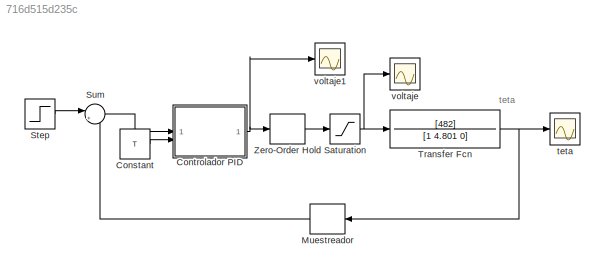
MODEL slx_716d515d235c
KIND model
CONFIG AbsTol = auto
CONFIG EnableMultiTasking = off
CONFIG FixedStep = auto
CONFIG MaxStep = auto
CONFIG MinStep = auto
CONFIG RelTol = 1e-3
CONFIG SampleTimeConstraint = Unconstrained
CONFIG SolverName = VariableStepAuto
CONFIG StartTime = 0.0
CONFIG StopTime = 6
BLOCK [Constant] Constant
  Value = T
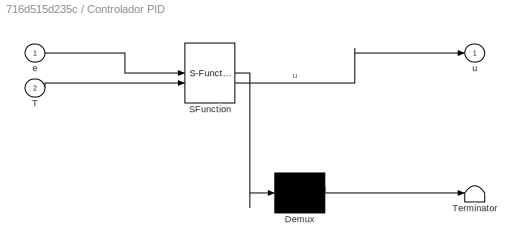
BLOCK [SubSystem] Controlador PID
  ErrorFcn = Stateflow.Translate.translate
  PermitHierarchicalResolution = ExplicitOnly
  SFBlockType = MATLAB Function
  SystemSampleTime = T
  TreatAsAtomicUnit = on
BLOCK [Demux] Controlador PID/ Demux 
  Outputs = 1
BLOCK [S-Function] Controlador PID/ SFunction 
  EnableBusSupport = on
  FunctionName = sf_sfun
  PortCounts = [2 2]
  SFcnIsStateOwnerBlock = off
  SFunctionDeploymentMode = off
  Tag = Stateflow S-Function 2
BLOCK [Terminator] Controlador PID/ Terminator 
BLOCK [Inport] Controlador PID/T
  Port = 2
BLOCK [Inport] Controlador PID/e
BLOCK [Outport] Controlador PID/u
BLOCK [ZeroOrderHold] Muestreador
  SampleTime = T
BLOCK [Saturate] Saturation
  LowerLimit = -3
  UpperLimit = 3
BLOCK [Step] Step
  After = 100
  SampleTime = T
  Time = 0
BLOCK [Sum] Sum
  Inputs = |+-
BLOCK [TransferFcn] Transfer Fcn
  Denominator = [1 4.801  0]
  Numerator = [482]
BLOCK [ZeroOrderHold] Zero-Order Hold
  SampleTime = T
BLOCK [Scope] teta
  Floating = off
  NumInputPorts = 1
  ScopeSpecificationString = Simulink.scopes.TimeScopeBlockCfg('CurrentConfiguration', extmgr.ConfigurationSet(extmgr.Configuration('Core','General UI',true),extmgr.Configuration('Core','Source UI',true),extmgr.Configuration('Sources','WiredSimulink',true),extmgr.Configuration('Visuals','Time Domain',true,'SerializedDisplays',{struct('MinYLimReal','-15.7823','MaxYLimReal','142.04072','YLabelReal','','MinYLimMag','0.00000','Ma...<+1758ch>
BLOCK [Scope] voltaje
  Floating = off
  NumInputPorts = 1
  ScopeSpecificationString = Simulink.scopes.TimeScopeBlockCfg('CurrentConfiguration', extmgr.ConfigurationSet(extmgr.Configuration('Core','General UI',true),extmgr.Configuration('Core','Source UI',true),extmgr.Configuration('Sources','WiredSimulink',true,'DataLoggingVariableName','ScopeData1'),extmgr.Configuration('Visuals','Time Domain',true,'SerializedDisplays',{struct('MinYLimReal','-0.61409','MaxYLimReal','3.40157','YLab...<+1487ch>
BLOCK [Scope] voltaje1
  Floating = off
  NumInputPorts = 1
  ScopeSpecificationString = Simulink.scopes.TimeScopeBlockCfg('CurrentConfiguration', extmgr.ConfigurationSet(extmgr.Configuration('Core','General UI',true),extmgr.Configuration('Core','Source UI',true),extmgr.Configuration('Sources','WiredSimulink',true,'DataLoggingVariableName','ScopeData1'),extmgr.Configuration('Visuals','Time Domain',true,'SerializedDisplays',{struct('MinYLimReal','-5.2984','MaxYLimReal','42.21526','YLab...<+1539ch>
ANNOTATION (root): teta
LINE Constant:1 -> Controlador PID:2
NET Controlador PID:1 -> Zero-Order Hold:1, voltaje1:1
LINE Muestreador:1 -> Sum:2
NET Saturation:1 -> Transfer Fcn:1, voltaje:1
LINE Step:1 -> Sum:1
LINE Sum:1 -> Controlador PID:1
NET Transfer Fcn:1 -> Muestreador:1, teta:1
LINE Zero-Order Hold:1 -> Saturation:1
note: NET lines group one-source signal fan-out (src -> all destinations, sorted); 1:1 wires keep LINE
CHART Controlador PID states=1 transitions=1
  STATE_LABEL 'eML_blk_kernel()'
  STATE_LABEL 'SCRIPT:\nfunction u = fcn(e,T)\n\nKp=0.0669;\nTd=0.25;\nTi=1;\n\npersistent e_ant;\npersistent I_ant;\n\nif isempty(e_ant),\n    e_ant=0;\nend;\n\nif isempty(I_ant),\n    I_ant=0;\nend;\n\n\nD = (e-e_ant)/T;\nI = I_ant + e*T;\n\n\nu = Kp*(e+ (1/Ti)*I + Td*D);\n\ne_ant = e;\nI_ant = I;'
CHART  states=0 transitions=0
